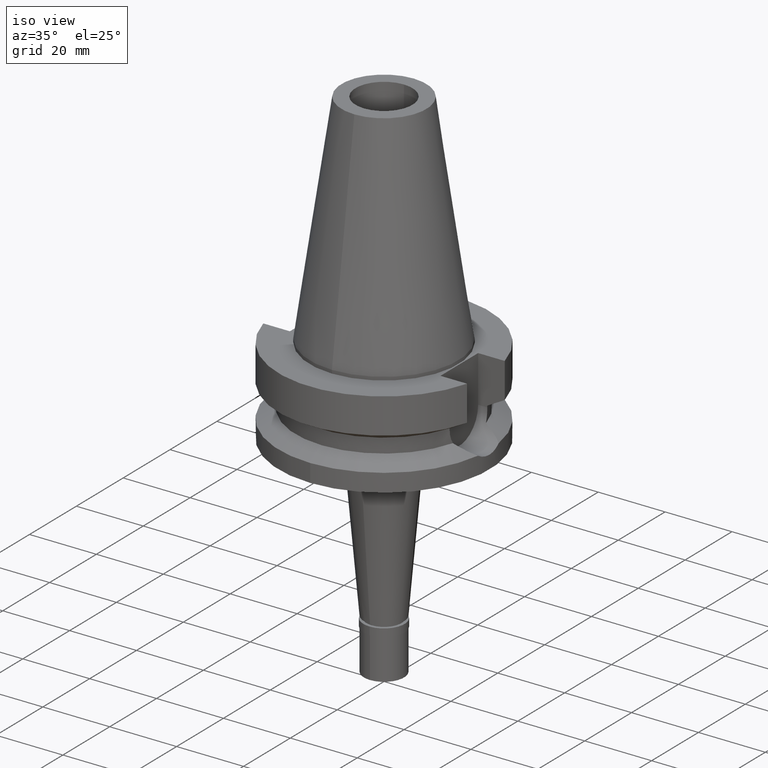
[diagram: clean part render]
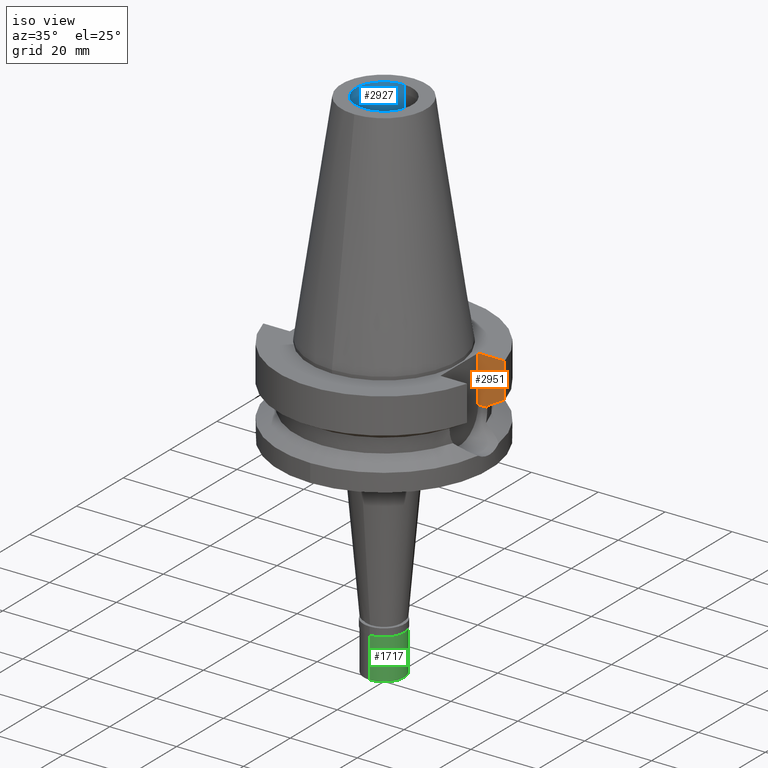
[diagram: same view with three faces highlighted in distinct colors, each labeled with its STEP entity id]
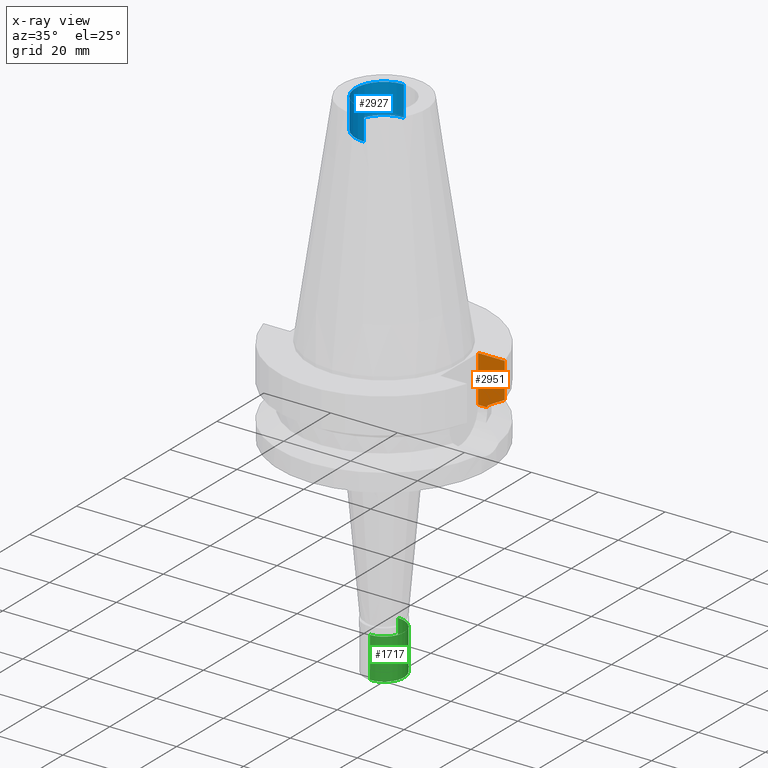
[diagram: x-ray of the same camera — body ghosted, the three highlighted faces saturated]
A machine part, iso view with three faces highlighted in distinct colors.
The next image is the same camera in x-ray (body ghosted, the three faces saturated) — at least one of them is partly hidden behind the body in this view.
Their STEP definitions:

[orange] entity #2951 — the highlighted planar face has unit normal (0, 1, 0).
#38 = DIRECTION ( 'NONE',  ( 1.000000000000000000, 0.0000000000000000000, 0.0000000000000000000 ) ) ;
#116 = CARTESIAN_POINT ( 'NONE',  ( 22.50000000000000000, 8.050000000000000711, -1.000000000000000000 ) ) ;
#151 = CARTESIAN_POINT ( 'NONE',  ( 22.50000000000000000, 8.050000000000000711, -1.000000000000000000 ) ) ;
#159 = LINE ( 'NONE', #1735, #1079 ) ;
#166 = VECTOR ( 'NONE', #2108, 1000.000000000000000 ) ;
#171 = VERTEX_POINT ( 'NONE', #2096 ) ;
#267 = DIRECTION ( 'NONE',  ( 2.938061785806081077E-06, -9.214834260562252460E-06, 0.9999999999532273032 ) ) ;
#325 = ORIENTED_EDGE ( 'NONE', *, *, #1148, .T. ) ;
#336 = VERTEX_POINT ( 'NONE', #151 ) ;
#380 = DIRECTION ( 'NONE',  ( 0.0000000000000000000, 0.0000000000000000000, -1.000000000000000000 ) ) ;
#392 = VECTOR ( 'NONE', #2672, 1000.000000000000000 ) ;
#412 = EDGE_LOOP ( 'NONE', ( #1974, #325, #989, #1564, #1113, #1573 ) ) ;
#470 = LINE ( 'NONE', #1203, #1609 ) ;
#612 = EDGE_CURVE ( 'NONE', #171, #1305, #1397, .T. ) ;
#630 = AXIS2_PLACEMENT_3D ( 'NONE', #1463, #789, #38 ) ;
#774 = FACE_OUTER_BOUND ( 'NONE', #412, .T. ) ;
#789 = DIRECTION ( 'NONE',  ( -0.0000000000000000000, 1.000000000000000000, 0.0000000000000000000 ) ) ;
#989 = ORIENTED_EDGE ( 'NONE', *, *, #2699, .F. ) ;
#1042 = VERTEX_POINT ( 'NONE', #1438 ) ;
#1061 = CARTESIAN_POINT ( 'NONE',  ( 25.24772413187999831, 8.049995413703999958, -14.45229204390000000 ) ) ;
#1079 = VECTOR ( 'NONE', #1764, 1000.000000000000114 ) ;
#1113 = ORIENTED_EDGE ( 'NONE', *, *, #612, .T. ) ;
#1135 = CARTESIAN_POINT ( 'NONE',  ( 25.24772266958000344, 8.050000000000000711, -14.94999999999999929 ) ) ;
#1142 = VERTEX_POINT ( 'NONE', #1980 ) ;
#1148 = EDGE_CURVE ( 'NONE', #1559, #1142, #159, .T. ) ;
#1203 = CARTESIAN_POINT ( 'NONE',  ( 25.24772266958000344, 8.050000000000000711, -14.94999999999999929 ) ) ;
#1240 = B_SPLINE_CURVE_WITH_KNOTS ( 'NONE', 3,
 ( #1884, #1913, #2175, #1061 ),
 .UNSPECIFIED., .F., .F.,
 ( 4, 4 ),
 ( 0.0000000000000000000, 1.000000000000000000 ),
 .UNSPECIFIED. ) ;
#1281 = CARTESIAN_POINT ( 'NONE',  ( 30.45402291389999760, 8.049999276982999774, -11.56551216472999855 ) ) ;
#1305 = VERTEX_POINT ( 'NONE', #1135 ) ;
#1397 = LINE ( 'NONE', #1864, #166 ) ;
#1438 = CARTESIAN_POINT ( 'NONE',  ( 25.24772413187999831, 8.049995413703999958, -14.45229204390000000 ) ) ;
#1463 = CARTESIAN_POINT ( 'NONE',  ( 22.50000000000000000, 8.050000000000000711, -14.94999999999999929 ) ) ;
#1481 = EDGE_CURVE ( 'NONE', #1559, #1042, #1240, .T. ) ;
#1559 = VERTEX_POINT ( 'NONE', #1281 ) ;
#1564 = ORIENTED_EDGE ( 'NONE', *, *, #2655, .T. ) ;
#1573 = ORIENTED_EDGE ( 'NONE', *, *, #1850, .T. ) ;
#1609 = VECTOR ( 'NONE', #267, 1000.000000000000000 ) ;
#1735 = CARTESIAN_POINT ( 'NONE',  ( 30.45402291389999760, 8.049999276982999774, -11.56551216472999855 ) ) ;
#1749 = CARTESIAN_POINT ( 'NONE',  ( 22.50000000000000000, 8.050000000000000711, -1.000000000000000000 ) ) ;
#1764 = DIRECTION ( 'NONE',  ( -1.808870115008990849E-08, 6.843175744406962773E-08, 0.9999999999999974465 ) ) ;
#1850 = EDGE_CURVE ( 'NONE', #1305, #1042, #470, .T. ) ;
#1864 = CARTESIAN_POINT ( 'NONE',  ( 22.50000000000000000, 8.050000000000000711, -14.94999999999999929 ) ) ;
#1884 = CARTESIAN_POINT ( 'NONE',  ( 30.45402291389999760, 8.049999276982999774, -11.56551216472999855 ) ) ;
#1913 = CARTESIAN_POINT ( 'NONE',  ( 28.57292327023797895, 8.049998554909693738, -12.61549606688957148 ) ) ;
#1974 = ORIENTED_EDGE ( 'NONE', *, *, #1481, .F. ) ;
#1980 = CARTESIAN_POINT ( 'NONE',  ( 30.45402272279000044, 8.050000000000000711, -1.000000000000000000 ) ) ;
#2096 = CARTESIAN_POINT ( 'NONE',  ( 22.50000000000000000, 8.050000000000000711, -14.94999999999999929 ) ) ;
#2108 = DIRECTION ( 'NONE',  ( 1.000000000000000000, -1.551559937893000172E-14, 0.0000000000000000000 ) ) ;
#2147 = PLANE ( 'NONE',  #630 ) ;
#2175 = CARTESIAN_POINT ( 'NONE',  ( 26.83754613909547615, 8.049990817250854747, -13.57774889330677759 ) ) ;
#2178 = LINE ( 'NONE', #116, #2889 ) ;
#2655 = EDGE_CURVE ( 'NONE', #336, #171, #2178, .T. ) ;
#2672 = DIRECTION ( 'NONE',  ( 1.000000000000000000, -3.506251283225999947E-14, 0.0000000000000000000 ) ) ;
#2699 = EDGE_CURVE ( 'NONE', #336, #1142, #2905, .T. ) ;
#2889 = VECTOR ( 'NONE', #380, 1000.000000000000000 ) ;
#2905 = LINE ( 'NONE', #1749, #392 ) ;
#2951 = ADVANCED_FACE ( 'NONE', ( #774 ), #2147, .F. ) ;

[blue] entity #2927 — the highlighted cylindrical surface (edge-blend (fillet) strip) has radius 8.5 mm, axis along (0, 0, -1).
#55 = FACE_OUTER_BOUND ( 'NONE', #2268, .T. ) ;
#158 = EDGE_CURVE ( 'NONE', #1353, #1276, #2283, .T. ) ;
#304 = CARTESIAN_POINT ( 'NONE',  ( 0.0000000000000000000, 8.500000000000000000, 56.39999999999999858 ) ) ;
#307 = CARTESIAN_POINT ( 'NONE',  ( 0.0000000000000000000, -8.500000000000000000, 65.40000000000000568 ) ) ;
#456 = EDGE_CURVE ( 'NONE', #2229, #946, #1937, .T. ) ;
#506 = VECTOR ( 'NONE', #1452, 1000.000000000000000 ) ;
#520 = DIRECTION ( 'NONE',  ( 0.0000000000000000000, -1.000000000000000000, 0.0000000000000000000 ) ) ;
#530 = ORIENTED_EDGE ( 'NONE', *, *, #158, .T. ) ;
#664 = CARTESIAN_POINT ( 'NONE',  ( 0.0000000000000000000, -8.500000000000000000, 56.39999999999999858 ) ) ;
#703 = AXIS2_PLACEMENT_3D ( 'NONE', #2321, #2632, #1310 ) ;
#879 = AXIS2_PLACEMENT_3D ( 'NONE', #1453, #2598, #520 ) ;
#946 = VERTEX_POINT ( 'NONE', #307 ) ;
#982 = LINE ( 'NONE', #304, #506 ) ;
#990 = AXIS2_PLACEMENT_3D ( 'NONE', #2811, #2798, #1374 ) ;
#1133 = DIRECTION ( 'NONE',  ( 0.0000000000000000000, 0.0000000000000000000, 1.000000000000000000 ) ) ;
#1185 = ORIENTED_EDGE ( 'NONE', *, *, #456, .T. ) ;
#1276 = VERTEX_POINT ( 'NONE', #1375 ) ;
#1310 = DIRECTION ( 'NONE',  ( 0.0000000000000000000, 1.000000000000000000, 0.0000000000000000000 ) ) ;
#1353 = VERTEX_POINT ( 'NONE', #2765 ) ;
#1356 = ORIENTED_EDGE ( 'NONE', *, *, #1705, .F. ) ;
#1374 = DIRECTION ( 'NONE',  ( 0.0000000000000000000, -1.000000000000000000, 0.0000000000000000000 ) ) ;
#1375 = CARTESIAN_POINT ( 'NONE',  ( 0.0000000000000000000, 8.500000000000000000, 56.39999999999999858 ) ) ;
#1386 = EDGE_CURVE ( 'NONE', #1276, #2229, #982, .T. ) ;
#1405 = CYLINDRICAL_SURFACE ( 'NONE', #879, 8.500000000000000000 ) ;
#1452 = DIRECTION ( 'NONE',  ( 0.0000000000000000000, 0.0000000000000000000, 1.000000000000000000 ) ) ;
#1453 = CARTESIAN_POINT ( 'NONE',  ( 0.0000000000000000000, 2.118271568485000005E-14, 72.96999999999999886 ) ) ;
#1705 = EDGE_CURVE ( 'NONE', #1353, #946, #2282, .T. ) ;
#1853 = VECTOR ( 'NONE', #1133, 1000.000000000000000 ) ;
#1862 = CARTESIAN_POINT ( 'NONE',  ( 0.0000000000000000000, 8.500000000000000000, 65.40000000000000568 ) ) ;
#1937 = CIRCLE ( 'NONE', #703, 8.500000000000000000 ) ;
#2024 = ORIENTED_EDGE ( 'NONE', *, *, #1386, .T. ) ;
#2229 = VERTEX_POINT ( 'NONE', #1862 ) ;
#2268 = EDGE_LOOP ( 'NONE', ( #1185, #1356, #530, #2024 ) ) ;
#2282 = LINE ( 'NONE', #664, #1853 ) ;
#2283 = CIRCLE ( 'NONE', #990, 8.500000000000000000 ) ;
#2321 = CARTESIAN_POINT ( 'NONE',  ( 0.0000000000000000000, 2.118271568485000005E-14, 65.40000000000000568 ) ) ;
#2598 = DIRECTION ( 'NONE',  ( 0.0000000000000000000, 0.0000000000000000000, -1.000000000000000000 ) ) ;
#2632 = DIRECTION ( 'NONE',  ( 0.0000000000000000000, 0.0000000000000000000, 1.000000000000000000 ) ) ;
#2765 = CARTESIAN_POINT ( 'NONE',  ( 0.0000000000000000000, -8.500000000000000000, 56.39999999999999858 ) ) ;
#2798 = DIRECTION ( 'NONE',  ( 0.0000000000000000000, 0.0000000000000000000, -1.000000000000000000 ) ) ;
#2811 = CARTESIAN_POINT ( 'NONE',  ( 0.0000000000000000000, 2.118271568485000005E-14, 56.39999999999999858 ) ) ;
#2927 = ADVANCED_FACE ( 'NONE', ( #55 ), #1405, .F. ) ;

[green] entity #1717 — the highlighted cylindrical surface (edge-blend (fillet) strip) has radius 6 mm, axis along (0, 0, 1).
#15 = VERTEX_POINT ( 'NONE', #708 ) ;
#29 = LINE ( 'NONE', #2804, #1747 ) ;
#91 = AXIS2_PLACEMENT_3D ( 'NONE', #200, #1920, #1183 ) ;
#96 = CARTESIAN_POINT ( 'NONE',  ( 0.0000000000000000000, 6.000000000000000000, -14.50000000000000000 ) ) ;
#198 = VERTEX_POINT ( 'NONE', #1657 ) ;
#200 = CARTESIAN_POINT ( 'NONE',  ( 0.0000000000000000000, 0.0000000000000000000, -2.299999999999999822 ) ) ;
#224 = CARTESIAN_POINT ( 'NONE',  ( 0.0000000000000000000, 0.0000000000000000000, -14.50000000000000000 ) ) ;
#449 = LINE ( 'NONE', #1387, #2458 ) ;
#668 = DIRECTION ( 'NONE',  ( 0.0000000000000000000, -1.000000000000000000, 0.0000000000000000000 ) ) ;
#708 = CARTESIAN_POINT ( 'NONE',  ( 0.0000000000000000000, -6.000000000000000000, -2.299999999999999822 ) ) ;
#825 = CIRCLE ( 'NONE', #1151, 6.000000000000000000 ) ;
#864 = CARTESIAN_POINT ( 'NONE',  ( 0.0000000000000000000, 0.0000000000000000000, -15.22500000000000142 ) ) ;
#950 = ORIENTED_EDGE ( 'NONE', *, *, #2300, .T. ) ;
#996 = EDGE_CURVE ( 'NONE', #198, #1634, #29, .T. ) ;
#1055 = ORIENTED_EDGE ( 'NONE', *, *, #996, .F. ) ;
#1124 = EDGE_LOOP ( 'NONE', ( #950, #1578, #2677, #1055 ) ) ;
#1151 = AXIS2_PLACEMENT_3D ( 'NONE', #224, #2286, #668 ) ;
#1183 = DIRECTION ( 'NONE',  ( 0.0000000000000000000, 1.000000000000000000, 0.0000000000000000000 ) ) ;
#1387 = CARTESIAN_POINT ( 'NONE',  ( 0.0000000000000000000, -6.000000000000000000, -2.299999999999999822 ) ) ;
#1408 = DIRECTION ( 'NONE',  ( 0.0000000000000000000, 0.0000000000000000000, -1.000000000000000000 ) ) ;
#1560 = AXIS2_PLACEMENT_3D ( 'NONE', #864, #2466, #1761 ) ;
#1578 = ORIENTED_EDGE ( 'NONE', *, *, #2723, .T. ) ;
#1634 = VERTEX_POINT ( 'NONE', #96 ) ;
#1657 = CARTESIAN_POINT ( 'NONE',  ( 0.0000000000000000000, 6.000000000000000000, -2.299999999999999822 ) ) ;
#1717 = ADVANCED_FACE ( 'NONE', ( #1991 ), #2718, .T. ) ;
#1747 = VECTOR ( 'NONE', #1408, 1000.000000000000000 ) ;
#1761 = DIRECTION ( 'NONE',  ( 0.0000000000000000000, 1.000000000000000000, 0.0000000000000000000 ) ) ;
#1886 = CARTESIAN_POINT ( 'NONE',  ( 0.0000000000000000000, -6.000000000000000000, -14.50000000000000000 ) ) ;
#1920 = DIRECTION ( 'NONE',  ( 0.0000000000000000000, 0.0000000000000000000, -1.000000000000000000 ) ) ;
#1991 = FACE_OUTER_BOUND ( 'NONE', #1124, .T. ) ;
#2060 = CIRCLE ( 'NONE', #91, 6.000000000000000000 ) ;
#2286 = DIRECTION ( 'NONE',  ( 0.0000000000000000000, 0.0000000000000000000, 1.000000000000000000 ) ) ;
#2300 = EDGE_CURVE ( 'NONE', #198, #15, #2060, .T. ) ;
#2458 = VECTOR ( 'NONE', #2514, 1000.000000000000000 ) ;
#2466 = DIRECTION ( 'NONE',  ( 0.0000000000000000000, 0.0000000000000000000, 1.000000000000000000 ) ) ;
#2514 = DIRECTION ( 'NONE',  ( 0.0000000000000000000, 0.0000000000000000000, -1.000000000000000000 ) ) ;
#2677 = ORIENTED_EDGE ( 'NONE', *, *, #2720, .T. ) ;
#2718 = CYLINDRICAL_SURFACE ( 'NONE', #1560, 6.000000000000000000 ) ;
#2720 = EDGE_CURVE ( 'NONE', #2865, #1634, #825, .T. ) ;
#2723 = EDGE_CURVE ( 'NONE', #15, #2865, #449, .T. ) ;
#2804 = CARTESIAN_POINT ( 'NONE',  ( 0.0000000000000000000, 6.000000000000000000, -2.299999999999999822 ) ) ;
#2865 = VERTEX_POINT ( 'NONE', #1886 ) ;